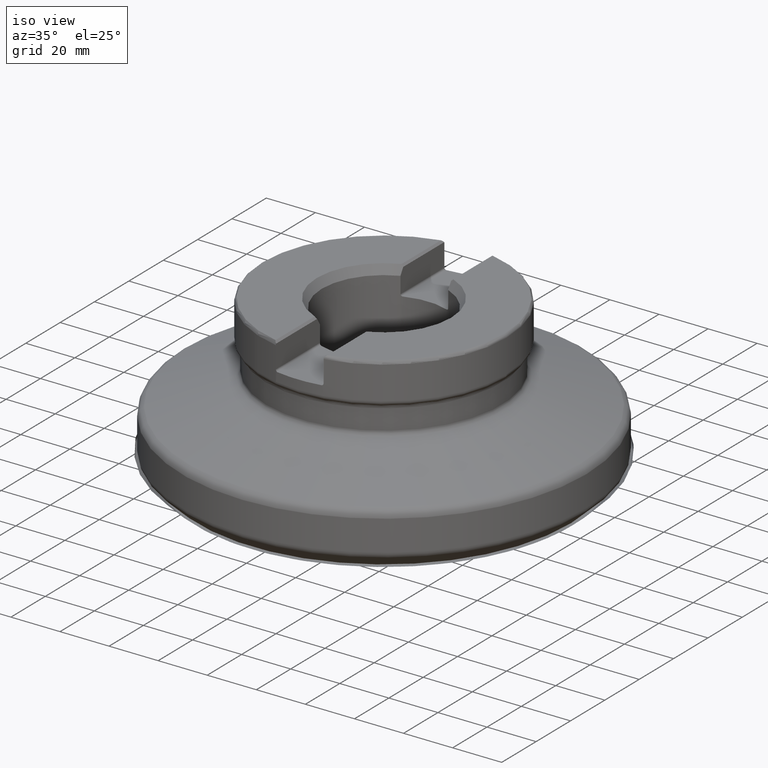
[diagram: clean part render]
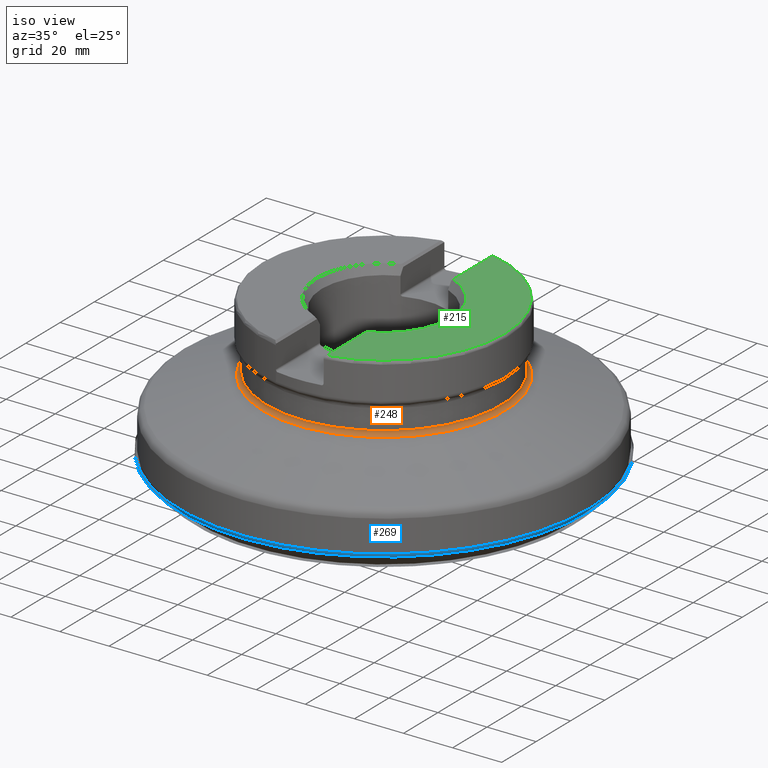
[diagram: same view with three faces highlighted in distinct colors, each labeled with its STEP entity id]
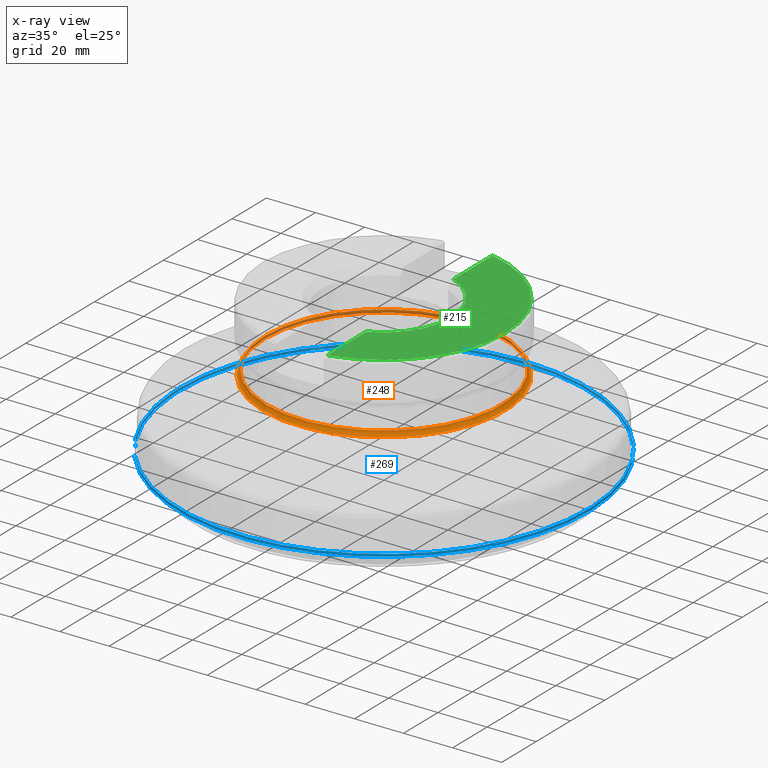
[diagram: x-ray of the same camera — body ghosted, the three highlighted faces saturated]
A machine part, iso view with three faces highlighted in distinct colors.
The next image is the same camera in x-ray (body ghosted, the three faces saturated) — at least one of them is partly hidden behind the body in this view.
Their STEP definitions:

[orange] entity #248 — the highlighted toroidal blend (fillet) surface has major radius 50 mm and minor (blend) radius 2 mm.
#186=TOROIDAL_SURFACE('',#1113,50.,2.);
#248=ADVANCED_FACE('',(#390,#391),#186,.F.);
#390=FACE_BOUND('',#496,.T.);
#391=FACE_BOUND('',#497,.T.);
#496=EDGE_LOOP('',(#700));
#497=EDGE_LOOP('',(#701));
#700=ORIENTED_EDGE('',*,*,#896,.F.);
#701=ORIENTED_EDGE('',*,*,#898,.F.);
#806=VERTEX_POINT('',#1925);
#808=VERTEX_POINT('',#1930);
#896=EDGE_CURVE('',#806,#806,#962,.T.);
#898=EDGE_CURVE('',#808,#808,#964,.T.);
#962=CIRCLE('',#1084,48.);
#964=CIRCLE('',#1087,49.3159597133487);
#1084=AXIS2_PLACEMENT_3D('',#1924,#1244,#1245);
#1087=AXIS2_PLACEMENT_3D('',#1929,#1250,#1251);
#1113=AXIS2_PLACEMENT_3D('',#1971,#1314,#1315);
#1244=DIRECTION('',(1.17145536458252E-15,0.,1.));
#1245=DIRECTION('',(-1.,0.,1.15648231731787E-15));
#1250=DIRECTION('',(-1.17145536458252E-15,0.,-1.));
#1251=DIRECTION('',(-1.,0.,1.12562244664646E-15));
#1314=DIRECTION('',(-1.17145536458252E-15,0.,-1.));
#1315=DIRECTION('',(-1.,0.,1.20096240644548E-15));
#1924=CARTESIAN_POINT('',(4.32572053410132E-14,0.,36.9260380282854));
#1925=CARTESIAN_POINT('',(-48.,0.,36.9260380282854));
#1929=CARTESIAN_POINT('',(4.10555894176566E-14,0.,35.0466527867135));
#1930=CARTESIAN_POINT('',(-49.3159597133486,0.,35.0466527867136));
#1971=CARTESIAN_POINT('',(4.32572053410132E-14,0.,36.9260380282854));

[blue] entity #269 — the highlighted face is a SurfaceOfRevolution surface.
#128=SURFACE_OF_REVOLUTION('',#315,#150);
#150=AXIS1_PLACEMENT('',#2087,#1386);
#269=ADVANCED_FACE('',(#432,#433),#128,.F.);
#315=LINE('',#2086,#351);
#351=VECTOR('',#1385,0.591392019615808);
#432=FACE_BOUND('',#538,.T.);
#433=FACE_BOUND('',#539,.T.);
#538=EDGE_LOOP('',(#742));
#539=EDGE_LOOP('',(#743));
#742=ORIENTED_EDGE('',*,*,#930,.T.);
#743=ORIENTED_EDGE('',*,*,#931,.F.);
#828=VERTEX_POINT('',#2075);
#829=VERTEX_POINT('',#2085);
#930=EDGE_CURVE('',#828,#828,#984,.T.);
#931=EDGE_CURVE('',#829,#829,#985,.T.);
#984=CIRCLE('',#1134,83.3638271822282);
#985=CIRCLE('',#1135,83.3434730434009);
#1134=AXIS2_PLACEMENT_3D('',#2074,#1380,#1381);
#1135=AXIS2_PLACEMENT_3D('',#2084,#1383,#1384);
#1380=DIRECTION('',(0.,0.,-1.));
#1381=DIRECTION('',(-1.,0.,0.));
#1383=DIRECTION('',(0.,0.,-1.));
#1384=DIRECTION('',(-1.,0.,0.));
#1385=DIRECTION('',(-0.342016682487027,0.00449861402072381,-0.939683112209888));
#1386=DIRECTION('',(0.,0.,-1.));
#2074=CARTESIAN_POINT('',(0.,0.,6.89511183259084));
#2075=CARTESIAN_POINT('',(-83.3638271822282,0.,6.89511183259084));
#2084=CARTESIAN_POINT('',(0.,0.,8.00655401964819));
#2085=CARTESIAN_POINT('',(-83.3434730434009,0.,8.00655401964819));
#2086=CARTESIAN_POINT('',(-5.28811859440194,-83.1854913662636,7.45083292611951));
#2087=CARTESIAN_POINT('',(0.,0.,0.));

[green] entity #215 — the highlighted planar face has unit normal (-0, 0, -1).
#166=PLANE('',#1058);
#193=FACE_OUTER_BOUND('',#447,.T.);
#215=ADVANCED_FACE('',(#193),#166,.F.);
#292=LINE('',#1832,#328);
#293=LINE('',#1836,#329);
#328=VECTOR('',#1186,1.);
#329=VECTOR('',#1189,1.);
#447=EDGE_LOOP('',(#588,#589,#590,#591));
#588=ORIENTED_EDGE('',*,*,#865,.T.);
#589=ORIENTED_EDGE('',*,*,#871,.T.);
#590=ORIENTED_EDGE('',*,*,#872,.T.);
#591=ORIENTED_EDGE('',*,*,#873,.T.);
#781=VERTEX_POINT('',#1807);
#782=VERTEX_POINT('',#1809);
#786=VERTEX_POINT('',#1833);
#787=VERTEX_POINT('',#1835);
#865=EDGE_CURVE('',#782,#781,#945,.T.);
#871=EDGE_CURVE('',#781,#786,#292,.T.);
#872=EDGE_CURVE('',#786,#787,#947,.T.);
#873=EDGE_CURVE('',#787,#782,#293,.T.);
#945=CIRCLE('',#1053,49.2483314773548);
#947=CIRCLE('',#1057,27.4);
#1053=AXIS2_PLACEMENT_3D('',#1808,#1176,#1177);
#1057=AXIS2_PLACEMENT_3D('',#1834,#1187,#1188);
#1058=AXIS2_PLACEMENT_3D('',#1837,#1190,#1191);
#1176=DIRECTION('',(1.17145536458252E-15,0.,1.));
#1177=DIRECTION('',(-1.,0.,1.12716816115451E-15));
#1186=DIRECTION('',(0.,-1.,0.));
#1187=DIRECTION('',(-1.17145536458252E-15,0.,-1.));
#1188=DIRECTION('',(-1.,0.,1.01297721224923E-15));
#1189=DIRECTION('',(0.,-1.,0.));
#1190=DIRECTION('',(-1.17145536458252E-15,0.,-1.));
#1191=DIRECTION('',(-1.,0.,1.16573417585641E-15));
#1807=CARTESIAN_POINT('',(10.5250000000001,48.1105240909244,63.5));
#1808=CARTESIAN_POINT('',(7.43874156509903E-14,0.,63.5));
#1809=CARTESIAN_POINT('',(10.5250000000001,-48.1105240909244,63.5));
#1832=CARTESIAN_POINT('',(10.5250000000001,25.6160960140299,63.5));
#1833=CARTESIAN_POINT('',(10.5250000000001,25.2979124632844,63.5));
#1834=CARTESIAN_POINT('',(7.43874156509903E-14,0.,63.5));
#1835=CARTESIAN_POINT('',(10.5250000000001,-25.2979124632844,63.5));
#1836=CARTESIAN_POINT('',(10.5250000000001,-48.2785928575328,63.5));
#1837=CARTESIAN_POINT('',(7.43874156509903E-14,0.,63.5));